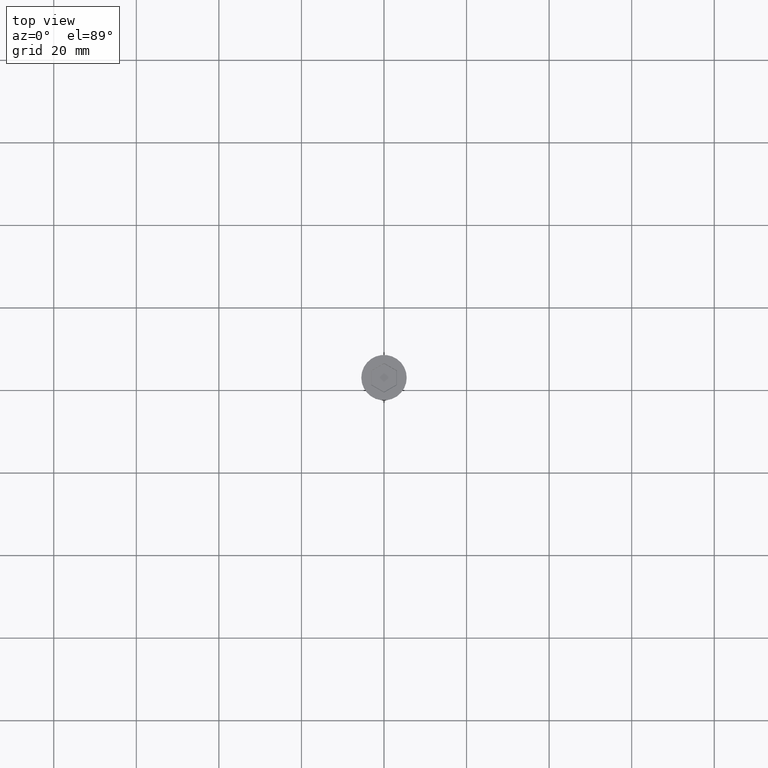
[diagram: clean part render]
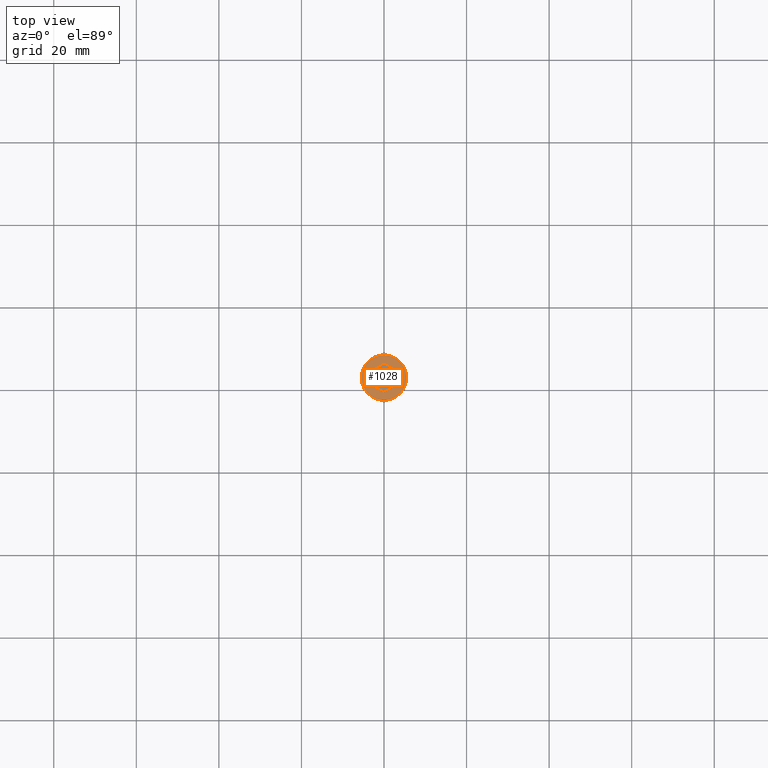
[diagram: same view with one face highlighted and labeled with its STEP entity id]
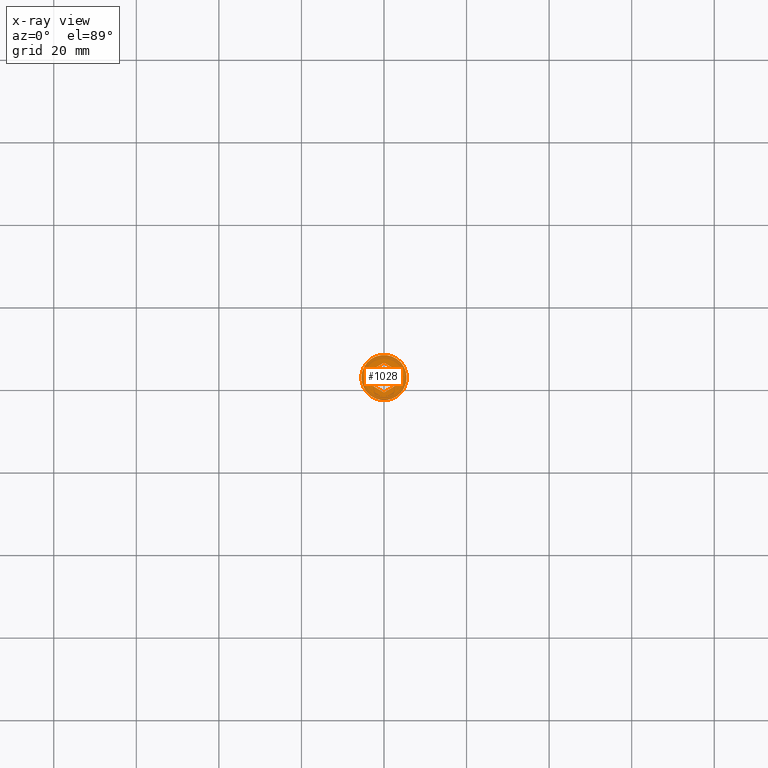
[diagram: x-ray of the same camera — body ghosted, the highlighted face saturated]
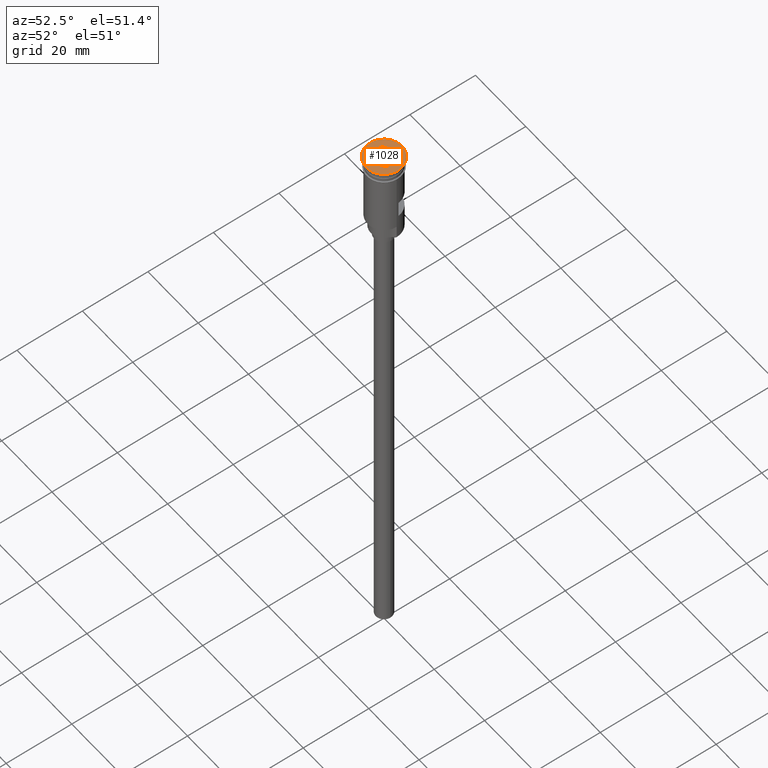
[diagram: same view with one face highlighted and labeled with its STEP entity id]
A machine part, top view. The second image highlights one B-rep face of the part: STEP entity #1028.
The next image is the same camera in x-ray: the body ghosted, the highlighted face saturated — about 0% of this face is hidden behind the body in this view.
A second angle (auxiliary view) of the same face is appended — the face is thin or edge-on in the first view.
In plain terms, the highlighted planar face has unit normal (0, -0, 1).
Its self-contained STEP definition (entity closure, byte-faithful):
#12 = DIRECTION ( 'NONE',  ( 0.8660254037844388186, -0.4999999999999997780, 0.000000000000000000 ) ) ;
#45 = VERTEX_POINT ( 'NONE', #167 ) ;
#47 = EDGE_CURVE ( 'NONE', #687, #329, #789, .T. ) ;
#48 = DIRECTION ( 'NONE',  ( 1.000000000000000000, 0.000000000000000000, 0.000000000000000000 ) ) ;
#54 = CARTESIAN_POINT ( 'NONE',  ( 0.04999999999999141936, -3.550704155516182237, 0.000000000000000000 ) ) ;
#95 = LINE ( 'NONE', #842, #666 ) ;
#167 = CARTESIAN_POINT ( 'NONE',  ( -3.099999999999983213, 1.789785834487829908, 0.000000000000000000 ) ) ;
#169 = DIRECTION ( 'NONE',  ( -0.8660254037844385966, -0.5000000000000001110, 0.000000000000000000 ) ) ;
#175 = CIRCLE ( 'NONE', #286, 5.500000000000000000 ) ;
#192 = CARTESIAN_POINT ( 'NONE',  ( 0.000000000000000000, 0.000000000000000000, 0.000000000000000000 ) ) ;
#222 = EDGE_CURVE ( 'NONE', #1265, #233, #489, .T. ) ;
#224 = LINE ( 'NONE', #719, #984 ) ;
#233 = VERTEX_POINT ( 'NONE', #1043 ) ;
#261 = AXIS2_PLACEMENT_3D ( 'NONE', #192, #924, #1400 ) ;
#286 = AXIS2_PLACEMENT_3D ( 'NONE', #834, #1441, #472 ) ;
#298 = FACE_OUTER_BOUND ( 'NONE', #973, .T. ) ;
#329 = VERTEX_POINT ( 'NONE', #974 ) ;
#372 = EDGE_CURVE ( 'NONE', #808, #45, #95, .T. ) ;
#381 = EDGE_CURVE ( 'NONE', #329, #549, #224, .T. ) ;
#391 = LINE ( 'NONE', #996, #1442 ) ;
#404 = PLANE ( 'NONE',  #261 ) ;
#449 = VERTEX_POINT ( 'NONE', #779 ) ;
#472 = DIRECTION ( 'NONE',  ( 1.000000000000000000, 0.000000000000000000, 0.000000000000000000 ) ) ;
#489 = CIRCLE ( 'NONE', #1605, 5.500000000000000000 ) ;
#549 = VERTEX_POINT ( 'NONE', #1126 ) ;
#562 = LINE ( 'NONE', #54, #1203 ) ;
#598 = CARTESIAN_POINT ( 'NONE',  ( 5.500000000000000000, 0.000000000000000000, 0.000000000000000000 ) ) ;
#606 = ORIENTED_EDGE ( 'NONE', *, *, #1317, .T. ) ;
#612 = DIRECTION ( 'NONE',  ( -0.8660254037844387076, 0.4999999999999998335, 0.000000000000000000 ) ) ;
#622 = ORIENTED_EDGE ( 'NONE', *, *, #372, .T. ) ;
#666 = VECTOR ( 'NONE', #993, 1000.000000000000000 ) ;
#687 = VERTEX_POINT ( 'NONE', #1159 ) ;
#691 = ORIENTED_EDGE ( 'NONE', *, *, #839, .T. ) ;
#693 = CARTESIAN_POINT ( 'NONE',  ( 0.000000000000000000, 0.000000000000000000, 0.000000000000000000 ) ) ;
#700 = ORIENTED_EDGE ( 'NONE', *, *, #1095, .T. ) ;
#719 = CARTESIAN_POINT ( 'NONE',  ( 3.099999999999982769, -1.732050807568876083, 0.000000000000000000 ) ) ;
#779 = CARTESIAN_POINT ( 'NONE',  ( -1.958864205101993824E-16, -3.579571668975658927, 0.000000000000000000 ) ) ;
#789 = LINE ( 'NONE', #1397, #1252 ) ;
#808 = VERTEX_POINT ( 'NONE', #1072 ) ;
#834 = CARTESIAN_POINT ( 'NONE',  ( 0.000000000000000000, 0.000000000000000000, 0.000000000000000000 ) ) ;
#839 = EDGE_CURVE ( 'NONE', #233, #1265, #175, .T. ) ;
#842 = CARTESIAN_POINT ( 'NONE',  ( -3.099999999999983213, 1.732050807568876971, 0.000000000000000000 ) ) ;
#924 = DIRECTION ( 'NONE',  ( 0.000000000000000000, -0.000000000000000000, 1.000000000000000000 ) ) ;
#932 = DIRECTION ( 'NONE',  ( -0.000000000000000000, -0.000000000000000000, 1.000000000000000000 ) ) ;
#970 = EDGE_LOOP ( 'NONE', ( #622, #1534, #1014, #1425, #700, #606 ) ) ;
#973 = EDGE_LOOP ( 'NONE', ( #1482, #691 ) ) ;
#974 = CARTESIAN_POINT ( 'NONE',  ( 3.099999999999983213, 1.789785834487831462, 0.000000000000000000 ) ) ;
#984 = VECTOR ( 'NONE', #1595, 1000.000000000000000 ) ;
#993 = DIRECTION ( 'NONE',  ( 0.000000000000000000, 1.000000000000000000, 0.000000000000000000 ) ) ;
#996 = CARTESIAN_POINT ( 'NONE',  ( -3.049999999999991385, -1.818653347947305932, 0.000000000000000000 ) ) ;
#1014 = ORIENTED_EDGE ( 'NONE', *, *, #47, .T. ) ;
#1028 = ADVANCED_FACE ( 'NONE', ( #1532, #298 ), #404, .T. ) ;
#1032 = DIRECTION ( 'NONE',  ( 0.8660254037844387076, 0.4999999999999998890, 0.000000000000000000 ) ) ;
#1043 = CARTESIAN_POINT ( 'NONE',  ( -5.500000000000000000, 6.735557395310442023E-16, 0.000000000000000000 ) ) ;
#1072 = CARTESIAN_POINT ( 'NONE',  ( -3.099999999999983213, -1.789785834487829241, 0.000000000000000000 ) ) ;
#1095 = EDGE_CURVE ( 'NONE', #549, #449, #562, .T. ) ;
#1113 = EDGE_CURVE ( 'NONE', #45, #687, #1540, .T. ) ;
#1126 = CARTESIAN_POINT ( 'NONE',  ( 3.099999999999982769, -1.789785834487828353, 0.000000000000000000 ) ) ;
#1155 = CARTESIAN_POINT ( 'NONE',  ( -0.04999999999999187039, 3.550704155516183125, 0.000000000000000000 ) ) ;
#1159 = CARTESIAN_POINT ( 'NONE',  ( 6.103073414120078086E-16, 3.579571668975660259, 0.000000000000000000 ) ) ;
#1203 = VECTOR ( 'NONE', #169, 1000.000000000000114 ) ;
#1252 = VECTOR ( 'NONE', #12, 1000.000000000000114 ) ;
#1265 = VERTEX_POINT ( 'NONE', #598 ) ;
#1317 = EDGE_CURVE ( 'NONE', #449, #808, #391, .T. ) ;
#1397 = CARTESIAN_POINT ( 'NONE',  ( 3.049999999999991829, 1.818653347947307708, 0.000000000000000000 ) ) ;
#1400 = DIRECTION ( 'NONE',  ( 1.000000000000000000, 0.000000000000000000, 0.000000000000000000 ) ) ;
#1425 = ORIENTED_EDGE ( 'NONE', *, *, #381, .T. ) ;
#1441 = DIRECTION ( 'NONE',  ( -0.000000000000000000, -0.000000000000000000, 1.000000000000000000 ) ) ;
#1442 = VECTOR ( 'NONE', #612, 1000.000000000000000 ) ;
#1482 = ORIENTED_EDGE ( 'NONE', *, *, #222, .T. ) ;
#1532 = FACE_BOUND ( 'NONE', #970, .T. ) ;
#1534 = ORIENTED_EDGE ( 'NONE', *, *, #1113, .T. ) ;
#1540 = LINE ( 'NONE', #1155, #1547 ) ;
#1547 = VECTOR ( 'NONE', #1032, 1000.000000000000000 ) ;
#1595 = DIRECTION ( 'NONE',  ( -1.251928832280966188E-16, -1.000000000000000000, 0.000000000000000000 ) ) ;
#1605 = AXIS2_PLACEMENT_3D ( 'NONE', #693, #932, #48 ) ;